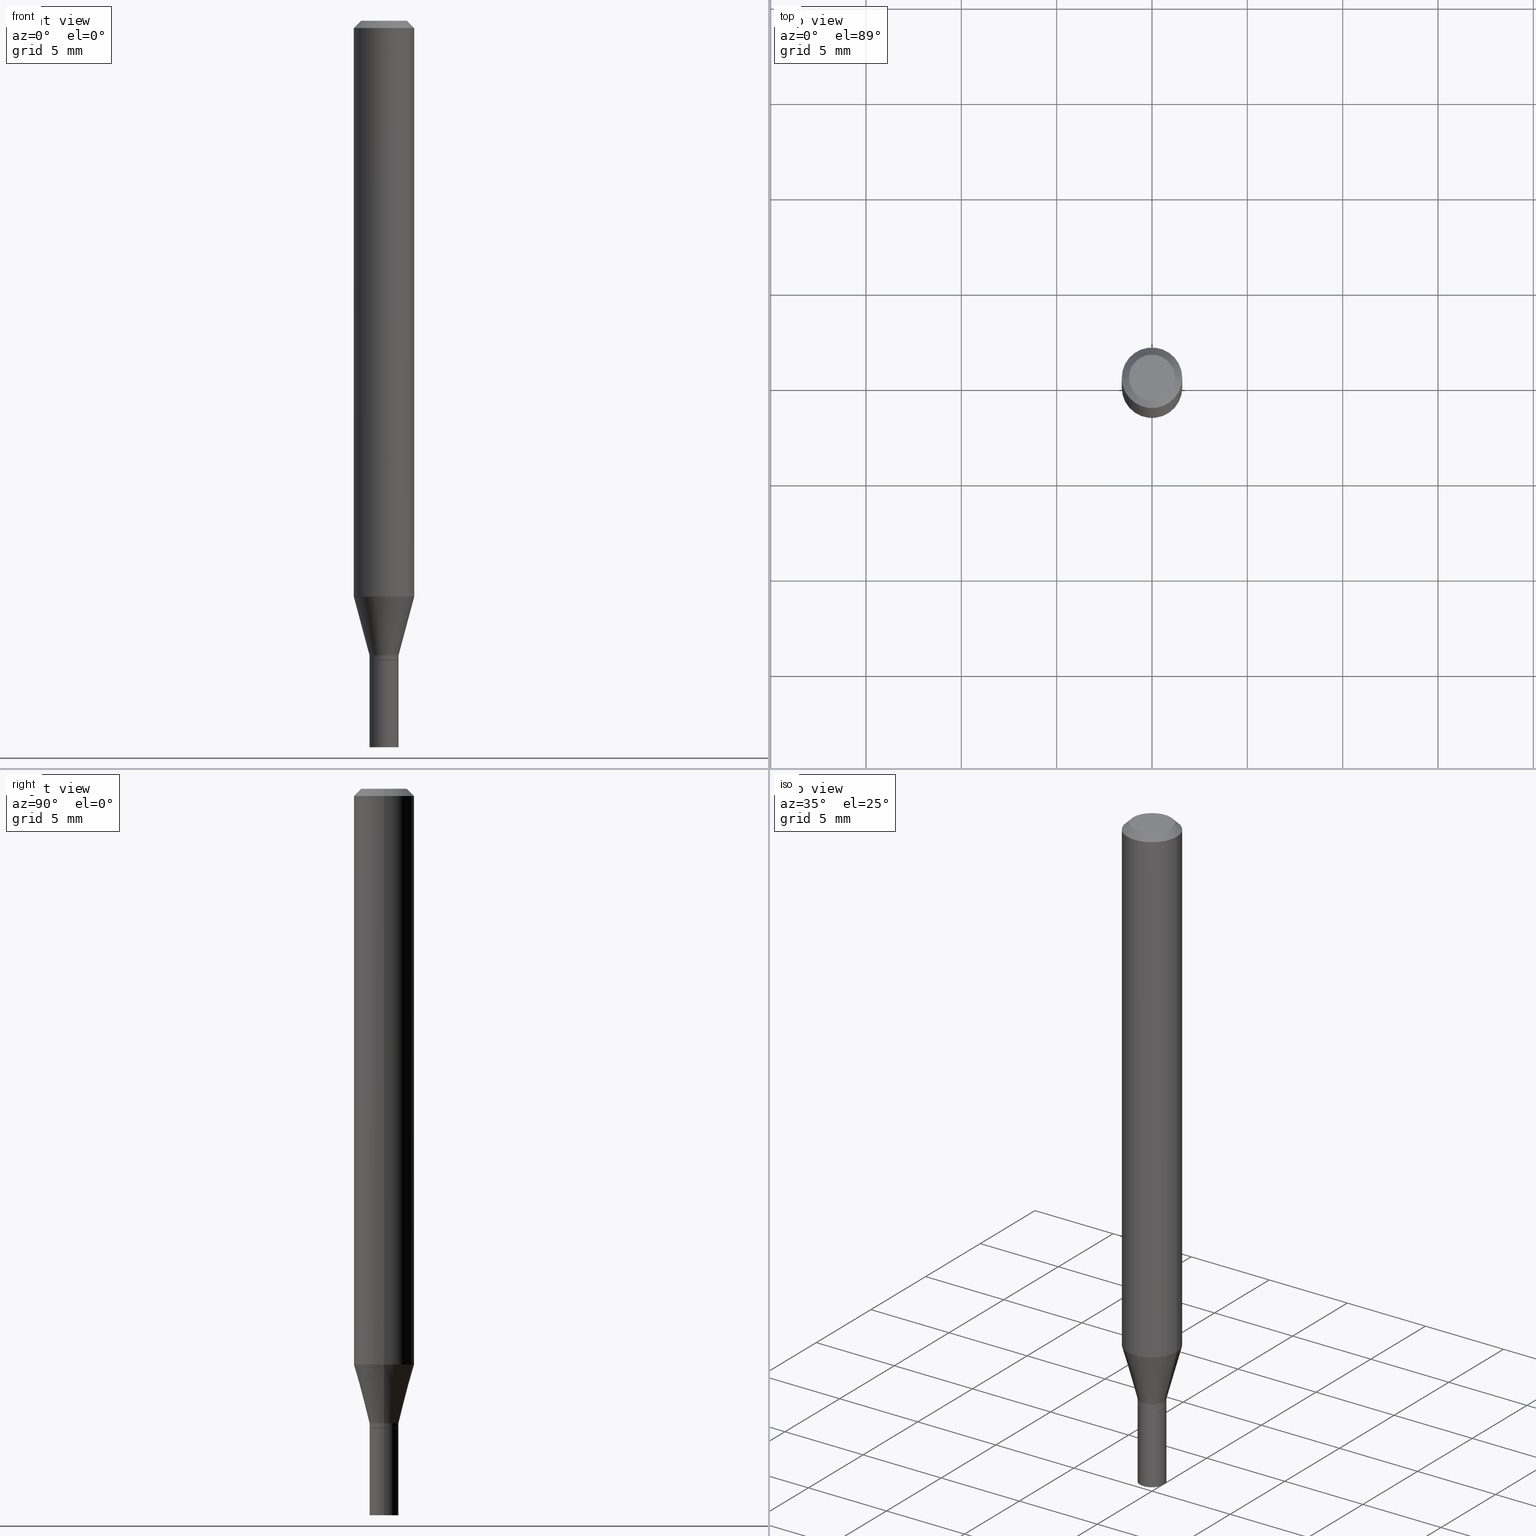
[diagram: canonical four-view strip — front | top / right | iso, engineering-drawing reading convention]
A machine part, canonical four-view strip (front | top / right | iso — engineering-drawing reading convention). The complete STEP part file that produces these views, byte-faithful:
ISO-10303-21;
HEADER;
FILE_DESCRIPTION (( 'STEP AP203' ),
    '1' );
FILE_NAME ('00569.STEP',
    '2024-03-19T21:45:49',
    ( '' ),
    ( '' ),
    'SwSTEP 2.0',
    'SolidWorks 2023',
    '' );
FILE_SCHEMA (( 'CONFIG_CONTROL_DESIGN' ));
ENDSEC;

DATA;
#1 = CC_DESIGN_PERSON_AND_ORGANIZATION_ASSIGNMENT ( #31, #406, ( #144 ) ) ;
#2 = FACE_OUTER_BOUND ( 'NONE', #376, .T. ) ;
#3 = AXIS2_PLACEMENT_3D ( 'NONE', #252, #386, #213 ) ;
#4 = APPROVAL_PERSON_ORGANIZATION ( #380, #449, #19 ) ;
#5 = ORIENTED_EDGE ( 'NONE', *, *, #178, .T. ) ;
#6 = EDGE_LOOP ( 'NONE', ( #69, #313, #239, #338 ) ) ;
#7 = CARTESIAN_POINT ( 'NONE',  ( 0.000000000000000000, 0.000000000000000000, 0.000000000000000000 ) ) ;
#8 = EDGE_LOOP ( 'NONE', ( #254, #114, #59, #334 ) ) ;
#9 = EDGE_CURVE ( 'NONE', #90, #344, #403, .T. ) ;
#10 = PLANE ( 'NONE',  #215 ) ;
#11 = VECTOR ( 'NONE', #16, 39.37007874015748854 ) ;
#12 = EDGE_LOOP ( 'NONE', ( #45, #398, #26, #390 ) ) ;
#13 = AXIS2_PLACEMENT_3D ( 'NONE', #442, #295, #117 ) ;
#14 = CARTESIAN_POINT ( 'NONE',  ( 0.06250000000000000000, -4.586788184357076846E-15, -1.188708348754012878 ) ) ;
#15 = DIRECTION ( 'NONE',  ( 1.000000000000000000, -6.982962677686250933E-15, 0.000000000000000000 ) ) ;
#16 = DIRECTION ( 'NONE',  ( -0.7071067811865416886, 2.468850131082196713E-15, -0.7071067811865531239 ) ) ;
#17 = ORIENTED_EDGE ( 'NONE', *, *, #70, .T. ) ;
#18 = DIRECTION ( 'NONE',  ( 1.000000000000000000, -6.982962677686268288E-15, 0.000000000000000000 ) ) ;
#19 = APPROVAL_ROLE ( '' ) ;
#20 = ORIENTED_EDGE ( 'NONE', *, *, #104, .F. ) ;
#21 = PRODUCT_DEFINITION_SHAPE ( 'NONE', 'NONE',  #251 ) ;
#22 = ADVANCED_FACE ( 'NONE', ( #303 ), #382, .T. ) ;
#23 = ORIENTED_EDGE ( 'NONE', *, *, #9, .T. ) ;
#24 = DESIGN_CONTEXT ( 'detailed design', #423, 'design' ) ;
#25 = DATE_TIME_ROLE ( 'classification_date' ) ;
#26 = ORIENTED_EDGE ( 'NONE', *, *, #255, .T. ) ;
#27 = DIRECTION ( 'NONE',  ( -2.445468806185136597E-29, 3.491481338843145583E-15, 1.000000000000000000 ) ) ;
#28 = AXIS2_PLACEMENT_3D ( 'NONE', #414, #27, #440 ) ;
#29 = AXIS2_PLACEMENT_3D ( 'NONE', #149, #391, #39 ) ;
#30 = VERTEX_POINT ( 'NONE', #237 ) ;
#31 = PERSON_AND_ORGANIZATION ( #47, #38 ) ;
#32 = ORIENTED_EDGE ( 'NONE', *, *, #147, .T. ) ;
#33 = DIRECTION ( 'NONE',  ( 2.438088387897960049E-29, -3.491481338843145188E-15, -1.000000000000000000 ) ) ;
#34 = ADVANCED_BREP_SHAPE_REPRESENTATION ( '00569', ( #330, #331, #130 ), #372 ) ;
#35 = APPROVAL_STATUS ( 'not_yet_approved' ) ;
#36 = DIRECTION ( 'NONE',  ( 1.000000000000000000, -6.982962677686266711E-15, 4.876176775795935793E-29 ) ) ;
#37 = CARTESIAN_POINT ( 'NONE',  ( -0.02999999999999999889, 2.131628207280300479E-16, -1.475680527076471707E-30 ) ) ;
#38 = ORGANIZATION ( 'UNSPECIFIED', 'UNSPECIFIED', '' ) ;
#39 = DIRECTION ( 'NONE',  ( 1.000000000000000000, -6.982962677686262766E-15, 0.000000000000000000 ) ) ;
#40 = FACE_OUTER_BOUND ( 'NONE', #6, .T. ) ;
#41 = DIRECTION ( 'NONE',  ( 2.445468806185136597E-29, -3.491481338843145583E-15, -1.000000000000000000 ) ) ;
#42 = PLANE ( 'NONE',  #44 ) ;
#43 = EDGE_CURVE ( 'NONE', #134, #288, #375, .T. ) ;
#44 = AXIS2_PLACEMENT_3D ( 'NONE', #348, #33, #350 ) ;
#45 = ORIENTED_EDGE ( 'NONE', *, *, #279, .F. ) ;
#46 = CIRCLE ( 'NONE', #168, 0.04749999999999999362 ) ;
#47 = PERSON ( 'UNSPECIFIED', 'UNSPECIFIED', 'UNSPECIFIED', ('UNSPECIFIED'), ('UNSPECIFIED'), ('UNSPECIFIED') ) ;
#48 = LINE ( 'NONE', #358, #400 ) ;
#49 = EDGE_CURVE ( 'NONE', #126, #128, #362, .T. ) ;
#50 = PERSON_AND_ORGANIZATION ( #47, #38 ) ;
#51 = FACE_OUTER_BOUND ( 'NONE', #141, .T. ) ;
#52 = AXIS2_PLACEMENT_3D ( 'NONE', #260, #369, #92 ) ;
#53 = APPLICATION_PROTOCOL_DEFINITION ( 'international standard', 'config_control_design', 1994, #423 ) ;
#54 = CARTESIAN_POINT ( 'NONE',  ( 0.02999999999999999889, -4.818244247603540754E-15, -1.320000000000000062 ) ) ;
#55 = VERTEX_POINT ( 'NONE', #205 ) ;
#56 = CARTESIAN_POINT ( 'NONE',  ( 0.06250000000000000000, -4.888073874380388472E-16, -0.01499999999999999944 ) ) ;
#57 = DIRECTION ( 'NONE',  ( -2.438088387897960049E-29, 3.491481338843145188E-15, 1.000000000000000000 ) ) ;
#58 = CONICAL_SURFACE ( 'NONE', #71, 0.03000000000000020012, 0.2617993877991501295 ) ;
#59 = ORIENTED_EDGE ( 'NONE', *, *, #312, .T. ) ;
#60 = VECTOR ( 'NONE', #188, 39.37007874015748143 ) ;
#61 = CARTESIAN_POINT ( 'NONE',  ( 3.203564136102529457E-29, -4.573840553884521577E-15, -1.310000000000000275 ) ) ;
#62 = VERTEX_POINT ( 'NONE', #14 ) ;
#63 = DIRECTION ( 'NONE',  ( -2.445468806185136597E-29, 3.491481338843145583E-15, 1.000000000000000000 ) ) ;
#64 = CARTESIAN_POINT ( 'NONE',  ( 3.228018824164380442E-29, -4.608755367272952437E-15, -1.320000000000000062 ) ) ;
#65 = DATE_AND_TIME ( #420, #343 ) ;
#66 = EDGE_CURVE ( 'NONE', #344, #288, #98, .T. ) ;
#67 = CARTESIAN_POINT ( 'NONE',  ( 0.06250000000000000000, -4.811533449433679005E-16, -0.01499999999999999944 ) ) ;
#68 = ORIENTED_EDGE ( 'NONE', *, *, #74, .F. ) ;
#69 = ORIENTED_EDGE ( 'NONE', *, *, #236, .T. ) ;
#70 = EDGE_CURVE ( 'NONE', #441, #30, #371, .T. ) ;
#71 = AXIS2_PLACEMENT_3D ( 'NONE', #61, #164, #234 ) ;
#72 = AXIS2_PLACEMENT_3D ( 'NONE', #80, #41, #145 ) ;
#73 = EDGE_CURVE ( 'NONE', #180, #62, #167, .T. ) ;
#74 = EDGE_CURVE ( 'NONE', #90, #134, #219, .T. ) ;
#75 = CARTESIAN_POINT ( 'NONE',  ( -0.02999999999999992256, -4.393846805875501477E-15, -1.319500000000000117 ) ) ;
#76 = DIRECTION ( 'NONE',  ( -2.445468806185136597E-29, 3.491481338843145583E-15, 1.000000000000000000 ) ) ;
#77 = CARTESIAN_POINT ( 'NONE',  ( 0.000000000000000000, 0.000000000000000000, 0.000000000000000000 ) ) ;
#78 = ADVANCED_FACE ( 'NONE', ( #228 ), #58, .T. ) ;
#79 = FACE_OUTER_BOUND ( 'NONE', #124, .T. ) ;
#80 = CARTESIAN_POINT ( 'NONE',  ( 3.668203209277705088E-31, -5.237222008264718399E-17, -0.01499999999999999944 ) ) ;
#81 = DIRECTION ( 'NONE',  ( -2.445468806185136597E-29, 3.491481338843145583E-15, 1.000000000000000000 ) ) ;
#82 = VERTEX_POINT ( 'NONE', #194 ) ;
#83 = AXIS2_PLACEMENT_3D ( 'NONE', #169, #123, #100 ) ;
#84 = FACE_OUTER_BOUND ( 'NONE', #193, .T. ) ;
#85 = DATE_TIME_ROLE ( 'creation_date' ) ;
#86 = DIRECTION ( 'NONE',  ( 1.000000000000000000, -6.982962677686268288E-15, 0.000000000000000000 ) ) ;
#87 = EDGE_CURVE ( 'NONE', #165, #191, #431, .T. ) ;
#88 = DIRECTION ( 'NONE',  ( -2.445468806185136597E-29, 3.491481338843145583E-15, 1.000000000000000000 ) ) ;
#89 = AXIS2_PLACEMENT_3D ( 'NONE', #258, #63, #86 ) ;
#90 = VERTEX_POINT ( 'NONE', #417 ) ;
#91 =( CONVERSION_BASED_UNIT ( 'INCH', #216 ) LENGTH_UNIT ( ) NAMED_UNIT ( #326 ) );
#92 = DIRECTION ( 'NONE',  ( 1.000000000000000000, -6.982962677686268288E-15, 0.000000000000000000 ) ) ;
#93 = CARTESIAN_POINT ( 'NONE',  ( -0.06250000000000000000, 3.840629472727444916E-16, -0.01499999999999999944 ) ) ;
#94 = CARTESIAN_POINT ( 'NONE',  ( -0.03000000000000006481, 2.131628207280305163E-16, -1.475680527076474859E-30 ) ) ;
#95 = EDGE_CURVE ( 'NONE', #82, #126, #304, .T. ) ;
#96 = ORIENTED_EDGE ( 'NONE', *, *, #172, .T. ) ;
#97 = DIRECTION ( 'NONE',  ( -2.445468806185136597E-29, 3.491481338843145583E-15, 1.000000000000000000 ) ) ;
#98 = CIRCLE ( 'NONE', #278, 0.06250000000000000000 ) ;
#99 = AXIS2_PLACEMENT_3D ( 'NONE', #153, #57, #226 ) ;
#100 = DIRECTION ( 'NONE',  ( 1.000000000000000000, -6.982962677686267499E-15, 4.852736867747366768E-29 ) ) ;
#101 = ADVANCED_FACE ( 'NONE', ( #103 ), #377, .T. ) ;
#102 = SECURITY_CLASSIFICATION_LEVEL ( 'unclassified' ) ;
#103 = FACE_OUTER_BOUND ( 'NONE', #368, .T. ) ;
#104 = EDGE_CURVE ( 'NONE', #288, #344, #119, .T. ) ;
#105 = VECTOR ( 'NONE', #174, 39.37007874015748143 ) ;
#106 = LOCAL_TIME ( 17, 45, 49.00000000000000000, #393 ) ;
#107 = PERSON_AND_ORGANIZATION ( #47, #38 ) ;
#108 = ORIENTED_EDGE ( 'NONE', *, *, #49, .F. ) ;
#109 = DIRECTION ( 'NONE',  ( -2.445468806185136877E-29, 3.491481338843145188E-15, 1.000000000000000000 ) ) ;
#110 = ADVANCED_FACE ( 'NONE', ( #143 ), #246, .T. ) ;
#111 = DIRECTION ( 'NONE',  ( 2.445468806185136597E-29, -3.491481338843145583E-15, -1.000000000000000000 ) ) ;
#112 = ORIENTED_EDGE ( 'NONE', *, *, #95, .T. ) ;
#113 = AXIS2_PLACEMENT_3D ( 'NONE', #166, #81, #383 ) ;
#114 = ORIENTED_EDGE ( 'NONE', *, *, #201, .T. ) ;
#115 = AXIS2_PLACEMENT_3D ( 'NONE', #181, #289, #323 ) ;
#116 = CALENDAR_DATE ( 2024, 19, 3 ) ;
#117 = DIRECTION ( 'NONE',  ( 1.000000000000000000, -6.982962677686250933E-15, 0.000000000000000000 ) ) ;
#118 = CARTESIAN_POINT ( 'NONE',  ( 0.000000000000000000, 0.000000000000000000, 0.000000000000000000 ) ) ;
#119 = CIRCLE ( 'NONE', #113, 0.06250000000000000000 ) ;
#120 = CC_DESIGN_APPROVAL ( #248, ( #352 ) ) ;
#121 = LOCAL_TIME ( 17, 45, 49.00000000000000000, #378 ) ;
#122 = ORIENTED_EDGE ( 'NONE', *, *, #396, .F. ) ;
#123 = DIRECTION ( 'NONE',  ( -2.445468806185136597E-29, 3.491481338843145583E-15, 1.000000000000000000 ) ) ;
#124 = EDGE_LOOP ( 'NONE', ( #268, #229 ) ) ;
#125 = CYLINDRICAL_SURFACE ( 'NONE', #286, 0.03000000000000006481 ) ;
#126 = VERTEX_POINT ( 'NONE', #75 ) ;
#127 = ORIENTED_EDGE ( 'NONE', *, *, #355, .T. ) ;
#128 = VERTEX_POINT ( 'NONE', #388 ) ;
#129 = ORIENTED_EDGE ( 'NONE', *, *, #233, .T. ) ;
#130 = AXIS2_PLACEMENT_3D ( 'NONE', #327, #186, #267 ) ;
#131 = CARTESIAN_POINT ( 'NONE',  ( 3.203564136102529457E-29, -4.573840553884521577E-15, -1.310000000000000275 ) ) ;
#132 = DIRECTION ( 'NONE',  ( -2.445468806185136597E-29, 3.491481338843145583E-15, 1.000000000000000000 ) ) ;
#133 = CC_DESIGN_PERSON_AND_ORGANIZATION_ASSIGNMENT ( #107, #346, ( #352 ) ) ;
#134 = VERTEX_POINT ( 'NONE', #426 ) ;
#135 = DIRECTION ( 'NONE',  ( -2.445468806185136597E-29, 3.491481338843145583E-15, 1.000000000000000000 ) ) ;
#136 = APPROVAL_ROLE ( '' ) ;
#137 = ORIENTED_EDGE ( 'NONE', *, *, #185, .F. ) ;
#138 = CARTESIAN_POINT ( 'NONE',  ( 0.02999999999999999889, -5.446710888595306494E-15, -1.500000000000000222 ) ) ;
#139 = CONICAL_SURFACE ( 'NONE', #187, 0.03000000000000020012, 0.2617993877991501295 ) ;
#140 = CARTESIAN_POINT ( 'NONE',  ( 0.03000000000000006481, -2.094888803305884401E-16, 1.462853032738783856E-30 ) ) ;
#141 = EDGE_LOOP ( 'NONE', ( #311, #287 ) ) ;
#142 = LINE ( 'NONE', #140, #437 ) ;
#143 = FACE_OUTER_BOUND ( 'NONE', #320, .T. ) ;
#144 = SECURITY_CLASSIFICATION ( '', '', #102 ) ;
#145 = DIRECTION ( 'NONE',  ( -1.000000000000000000, 6.982962677686266711E-15, 0.000000000000000000 ) ) ;
#146 = DIRECTION ( 'NONE',  ( -1.000000000000000000, 6.982962677686266711E-15, 0.000000000000000000 ) ) ;
#147 = EDGE_CURVE ( 'NONE', #128, #441, #142, .T. ) ;
#148 = DIRECTION ( 'NONE',  ( -2.445468806185136597E-29, 3.491481338843145583E-15, 1.000000000000000000 ) ) ;
#149 = CARTESIAN_POINT ( 'NONE',  ( 2.906949186529780913E-29, -4.150353017001685176E-15, -1.188708348754012878 ) ) ;
#150 = APPLICATION_PROTOCOL_DEFINITION ( 'international standard', 'config_control_design', 1994, #394 ) ;
#151 = ORIENTED_EDGE ( 'NONE', *, *, #236, .F. ) ;
#152 = CIRCLE ( 'NONE', #13, 0.02949999999999999845 ) ;
#153 = CARTESIAN_POINT ( 'NONE',  ( 3.228018824164380442E-29, -4.608755367272952437E-15, -1.320000000000000062 ) ) ;
#154 = ADVANCED_FACE ( 'NONE', ( #79 ), #42, .F. ) ;
#155 = CC_DESIGN_PERSON_AND_ORGANIZATION_ASSIGNMENT ( #310, #452, ( #352 ) ) ;
#156 = CARTESIAN_POINT ( 'NONE',  ( -0.02999999999999999889, -4.709825867040805456E-15, -1.320000000000000062 ) ) ;
#157 = DIRECTION ( 'NONE',  ( 1.000000000000000000, -6.982962677686265922E-15, 4.876176775795935793E-29 ) ) ;
#158 = ORIENTED_EDGE ( 'NONE', *, *, #178, .F. ) ;
#159 = CIRCLE ( 'NONE', #438, 0.03000000000000020012 ) ;
#160 = EDGE_LOOP ( 'NONE', ( #341, #329, #32, #184 ) ) ;
#161 = CARTESIAN_POINT ( 'NONE',  ( 3.226796089761288762E-29, -4.607009626603530934E-15, -1.319500000000000117 ) ) ;
#162 =( NAMED_UNIT ( * ) PLANE_ANGLE_UNIT ( ) SI_UNIT ( $, .RADIAN. ) );
#163 = PLANE ( 'NONE',  #99 ) ;
#164 = DIRECTION ( 'NONE',  ( -2.445468806185136597E-29, 3.491481338843145583E-15, 1.000000000000000000 ) ) ;
#165 = VERTEX_POINT ( 'NONE', #138 ) ;
#166 = CARTESIAN_POINT ( 'NONE',  ( 3.668203209277705088E-31, -5.237222008264718399E-17, -0.01499999999999999944 ) ) ;
#167 = CIRCLE ( 'NONE', #28, 0.06250000000000000000 ) ;
#168 = AXIS2_PLACEMENT_3D ( 'NONE', #307, #132, #202 ) ;
#169 = CARTESIAN_POINT ( 'NONE',  ( -6.039856226162565090E-45, 8.623313963198306787E-31, 2.469815280770059421E-16 ) ) ;
#170 = DIRECTION ( 'NONE',  ( -2.445468806185136597E-29, 3.491481338843145583E-15, 1.000000000000000000 ) ) ;
#171 = DIRECTION ( 'NONE',  ( 1.000000000000000000, -6.982962677686253300E-15, 0.000000000000000000 ) ) ;
#172 = EDGE_CURVE ( 'NONE', #55, #128, #285, .T. ) ;
#173 = AXIS2_PLACEMENT_3D ( 'NONE', #451, #339, #18 ) ;
#174 = DIRECTION ( 'NONE',  ( -2.445468806185136877E-29, 3.491481338843145188E-15, 1.000000000000000000 ) ) ;
#175 = CIRCLE ( 'NONE', #89, 0.02999999999999999889 ) ;
#176 = DIRECTION ( 'NONE',  ( -2.445468806185136597E-29, 3.491481338843145583E-15, 1.000000000000000000 ) ) ;
#177 = LINE ( 'NONE', #37, #105 ) ;
#178 = EDGE_CURVE ( 'NONE', #191, #354, #177, .T. ) ;
#179 = AXIS2_PLACEMENT_3D ( 'NONE', #464, #111, #146 ) ;
#180 = VERTEX_POINT ( 'NONE', #282 ) ;
#181 = CARTESIAN_POINT ( 'NONE',  ( 3.228018824164380442E-29, -4.608755367272952437E-15, -1.320000000000000062 ) ) ;
#182 = CC_DESIGN_DATE_AND_TIME_ASSIGNMENT ( #257, #85, ( #251 ) ) ;
#183 = ADVANCED_FACE ( 'NONE', ( #40 ), #319, .T. ) ;
#184 = ORIENTED_EDGE ( 'NONE', *, *, #201, .F. ) ;
#185 = EDGE_CURVE ( 'NONE', #165, #413, #353, .T. ) ;
#186 = DIRECTION ( 'NONE',  ( 0.000000000000000000, 0.000000000000000000, 1.000000000000000000 ) ) ;
#187 = AXIS2_PLACEMENT_3D ( 'NONE', #397, #88, #221 ) ;
#188 = DIRECTION ( 'NONE',  ( -2.445468806185136877E-29, 3.491481338843145188E-15, 1.000000000000000000 ) ) ;
#189 = CALENDAR_DATE ( 2024, 19, 3 ) ;
#190 = FACE_OUTER_BOUND ( 'NONE', #12, .T. ) ;
#191 = VERTEX_POINT ( 'NONE', #249 ) ;
#192 = CARTESIAN_POINT ( 'NONE',  ( -0.06250000000000000000, -1.657273408692103709E-15, -0.01499999999999999944 ) ) ;
#193 = EDGE_LOOP ( 'NONE', ( #247, #276, #261, #317 ) ) ;
#194 = CARTESIAN_POINT ( 'NONE',  ( -0.02949999999999999845, -4.396496033049612679E-15, -1.320000000000000062 ) ) ;
#195 = CARTESIAN_POINT ( 'NONE',  ( 0.03000000000000020012, -4.783329434215110683E-15, -1.310000000000000275 ) ) ;
#196 = EDGE_LOOP ( 'NONE', ( #273, #419 ) ) ;
#197 = ORIENTED_EDGE ( 'NONE', *, *, #87, .F. ) ;
#198 = CC_DESIGN_PERSON_AND_ORGANIZATION_ASSIGNMENT ( #50, #291, ( #251 ) ) ;
#199 = DIRECTION ( 'NONE',  ( -2.445468806185136597E-29, 3.491481338843145583E-15, 1.000000000000000000 ) ) ;
#200 = DATE_AND_TIME ( #455, #379 ) ;
#201 = EDGE_CURVE ( 'NONE', #30, #441, #159, .T. ) ;
#202 = DIRECTION ( 'NONE',  ( 1.000000000000000000, -6.982962677686267499E-15, 4.852736867747366768E-29 ) ) ;
#203 = AXIS2_PLACEMENT_3D ( 'NONE', #465, #148, #429 ) ;
#204 = ORIENTED_EDGE ( 'NONE', *, *, #185, .T. ) ;
#205 = CARTESIAN_POINT ( 'NONE',  ( 0.02949999999999999845, -4.814752766264696958E-15, -1.320000000000000062 ) ) ;
#206 = ADVANCED_FACE ( 'NONE', ( #84 ), #280, .T. ) ;
#207 = SHAPE_DEFINITION_REPRESENTATION ( #21, #34 ) ;
#208 = EDGE_CURVE ( 'NONE', #191, #165, #232, .T. ) ;
#209 = CARTESIAN_POINT ( 'NONE',  ( 3.203564136102529457E-29, -4.573840553884521577E-15, -1.310000000000000275 ) ) ;
#210 = FACE_OUTER_BOUND ( 'NONE', #444, .T. ) ;
#211 = CARTESIAN_POINT ( 'NONE',  ( 0.02949999999999999845, -4.814752766264696958E-15, -1.320000000000000062 ) ) ;
#212 = CC_DESIGN_DATE_AND_TIME_ASSIGNMENT ( #200, #25, ( #144 ) ) ;
#213 = DIRECTION ( 'NONE',  ( 1.000000000000000000, -6.982962677686268288E-15, 0.000000000000000000 ) ) ;
#214 = VECTOR ( 'NONE', #374, 39.37007874015748143 ) ;
#215 = AXIS2_PLACEMENT_3D ( 'NONE', #297, #269, #157 ) ;
#216 = LENGTH_MEASURE_WITH_UNIT ( LENGTH_MEASURE( 0.02539999999999999897 ), #433 );
#217 = APPROVAL_STATUS ( 'not_yet_approved' ) ;
#218 = LINE ( 'NONE', #94, #60 ) ;
#219 = CIRCLE ( 'NONE', #83, 0.04749999999999999362 ) ;
#220 = CONICAL_SURFACE ( 'NONE', #72, 0.06250000000000000000, 0.7853981633974401744 ) ;
#221 = DIRECTION ( 'NONE',  ( 1.000000000000000000, -6.982962677686253300E-15, 0.000000000000000000 ) ) ;
#222 = LINE ( 'NONE', #404, #463 ) ;
#223 = EDGE_CURVE ( 'NONE', #30, #180, #48, .T. ) ;
#224 = ORIENTED_EDGE ( 'NONE', *, *, #208, .T. ) ;
#225 = PRODUCT ( '00569', '00569', '', ( #401 ) ) ;
#226 = DIRECTION ( 'NONE',  ( 1.000000000000000000, -6.982962677686265922E-15, 4.876176775795935793E-29 ) ) ;
#227 = ORIENTED_EDGE ( 'NONE', *, *, #462, .T. ) ;
#228 = FACE_OUTER_BOUND ( 'NONE', #453, .T. ) ;
#229 = ORIENTED_EDGE ( 'NONE', *, *, #244, .T. ) ;
#230 = AXIS2_PLACEMENT_3D ( 'NONE', #161, #170, #238 ) ;
#231 = DIRECTION ( 'NONE',  ( 0.2588190451025214611, 1.565188264969621573E-15, 0.9659258262890682012 ) ) ;
#232 = CIRCLE ( 'NONE', #3, 0.02999999999999999889 ) ;
#233 = EDGE_CURVE ( 'NONE', #82, #55, #262, .T. ) ;
#234 = DIRECTION ( 'NONE',  ( 1.000000000000000000, -6.982962677686253300E-15, 0.000000000000000000 ) ) ;
#235 = APPROVAL_DATE_TIME ( #243, #449 ) ;
#236 = EDGE_CURVE ( 'NONE', #128, #126, #290, .T. ) ;
#237 = CARTESIAN_POINT ( 'NONE',  ( -0.03000000000000020012, -4.033470770154056946E-15, -1.310000000000000275 ) ) ;
#238 = DIRECTION ( 'NONE',  ( 1.000000000000000000, -6.982962677686254089E-15, 0.000000000000000000 ) ) ;
#239 = ORIENTED_EDGE ( 'NONE', *, *, #70, .F. ) ;
#240 = CARTESIAN_POINT ( 'NONE',  ( 0.000000000000000000, 0.000000000000000000, 0.000000000000000000 ) ) ;
#241 = AXIS2_PLACEMENT_3D ( 'NONE', #385, #322, #315 ) ;
#242 = VECTOR ( 'NONE', #231, 39.37007874015747433 ) ;
#243 = DATE_AND_TIME ( #411, #121 ) ;
#244 = EDGE_CURVE ( 'NONE', #354, #413, #384, .T. ) ;
#245 = ORIENTED_EDGE ( 'NONE', *, *, #172, .F. ) ;
#246 = CYLINDRICAL_SURFACE ( 'NONE', #241, 0.06250000000000000000 ) ;
#247 = ORIENTED_EDGE ( 'NONE', *, *, #424, .F. ) ;
#248 = APPROVAL ( #340, 'UNSPECIFIED' ) ;
#249 = CARTESIAN_POINT ( 'NONE',  ( -0.02999999999999999889, -4.709825867040805456E-15, -1.500000000000000222 ) ) ;
#250 = AXIS2_PLACEMENT_3D ( 'NONE', #292, #407, #15 ) ;
#251 = PRODUCT_DEFINITION ( 'UNKNOWN', '', #352, #24 ) ;
#252 = CARTESIAN_POINT ( 'NONE',  ( 3.668203209277704895E-29, -5.237222008264718177E-15, -1.500000000000000222 ) ) ;
#253 = CARTESIAN_POINT ( 'NONE',  ( 0.000000000000000000, 0.000000000000000000, 0.000000000000000000 ) ) ;
#254 = ORIENTED_EDGE ( 'NONE', *, *, #223, .F. ) ;
#255 = EDGE_CURVE ( 'NONE', #62, #288, #222, .T. ) ;
#256 = CLOSED_SHELL ( 'NONE', ( #183, #101, #206, #110, #78, #405, #415, #430, #347, #336, #345, #392 ) ) ;
#257 = DATE_AND_TIME ( #116, #106 ) ;
#258 = CARTESIAN_POINT ( 'NONE',  ( 3.228018824164380442E-29, -4.608755367272952437E-15, -1.320000000000000062 ) ) ;
#259 = APPROVAL_ROLE ( '' ) ;
#260 = CARTESIAN_POINT ( 'NONE',  ( 3.228018824164380442E-29, -4.608755367272952437E-15, -1.320000000000000062 ) ) ;
#261 = ORIENTED_EDGE ( 'NONE', *, *, #104, .T. ) ;
#262 = CIRCLE ( 'NONE', #115, 0.02949999999999999845 ) ;
#263 = EDGE_CURVE ( 'NONE', #126, #30, #218, .T. ) ;
#264 = DIRECTION ( 'NONE',  ( -2.445468806185136877E-29, 3.491481338843145188E-15, 1.000000000000000000 ) ) ;
#265 = APPROVAL_DATE_TIME ( #332, #454 ) ;
#266 = ORIENTED_EDGE ( 'NONE', *, *, #244, .F. ) ;
#267 = DIRECTION ( 'NONE',  ( 1.000000000000000000, 0.000000000000000000, 0.000000000000000000 ) ) ;
#268 = ORIENTED_EDGE ( 'NONE', *, *, #396, .T. ) ;
#269 = DIRECTION ( 'NONE',  ( -2.438088387897960049E-29, 3.491481338843145188E-15, 1.000000000000000000 ) ) ;
#270 = DIRECTION ( 'NONE',  ( 1.000000000000000000, -6.982962677686266711E-15, 0.000000000000000000 ) ) ;
#271 = AXIS2_PLACEMENT_3D ( 'NONE', #131, #135, #309 ) ;
#272 = APPROVAL_PERSON_ORGANIZATION ( #305, #248, #136 ) ;
#273 = ORIENTED_EDGE ( 'NONE', *, *, #355, .F. ) ;
#274 = ORIENTED_EDGE ( 'NONE', *, *, #66, .T. ) ;
#275 = COORDINATED_UNIVERSAL_TIME_OFFSET ( 5, 0, .BEHIND. ) ;
#276 = ORIENTED_EDGE ( 'NONE', *, *, #43, .T. ) ;
#277 = COORDINATED_UNIVERSAL_TIME_OFFSET ( 5, 0, .BEHIND. ) ;
#278 = AXIS2_PLACEMENT_3D ( 'NONE', #301, #446, #270 ) ;
#279 = EDGE_CURVE ( 'NONE', #180, #344, #373, .T. ) ;
#280 = CONICAL_SURFACE ( 'NONE', #179, 0.06250000000000000000, 0.7853981633974401744 ) ;
#281 = ORIENTED_EDGE ( 'NONE', *, *, #43, .F. ) ;
#282 = CARTESIAN_POINT ( 'NONE',  ( -0.06250000000000000000, -3.706263807151623349E-15, -1.188708348754012878 ) ) ;
#283 = CARTESIAN_POINT ( 'NONE',  ( 0.02999999999999999889, -2.094888803305880210E-16, 1.462853032738780878E-30 ) ) ;
#284 = ORIENTED_EDGE ( 'NONE', *, *, #87, .T. ) ;
#285 = LINE ( 'NONE', #211, #299 ) ;
#286 = AXIS2_PLACEMENT_3D ( 'NONE', #118, #97, #436 ) ;
#287 = ORIENTED_EDGE ( 'NONE', *, *, #424, .T. ) ;
#288 = VERTEX_POINT ( 'NONE', #56 ) ;
#289 = DIRECTION ( 'NONE',  ( -2.445468806185136597E-29, 3.491481338843145583E-15, 1.000000000000000000 ) ) ;
#290 = CIRCLE ( 'NONE', #203, 0.02999999999999992256 ) ;
#291 = PERSON_AND_ORGANIZATION_ROLE ( 'creator' ) ;
#292 = CARTESIAN_POINT ( 'NONE',  ( 3.228018824164380442E-29, -4.608755367272952437E-15, -1.320000000000000062 ) ) ;
#293 = CC_DESIGN_PERSON_AND_ORGANIZATION_ASSIGNMENT ( #366, #324, ( #225 ) ) ;
#294 =( NAMED_UNIT ( * ) SI_UNIT ( $, .STERADIAN. ) SOLID_ANGLE_UNIT ( ) );
#295 = DIRECTION ( 'NONE',  ( -2.445468806185136597E-29, 3.491481338843145583E-15, 1.000000000000000000 ) ) ;
#296 = EDGE_LOOP ( 'NONE', ( #284, #5, #122, #137 ) ) ;
#297 = CARTESIAN_POINT ( 'NONE',  ( 3.576687321579069994E-29, -5.368277968210015545E-15, -1.500000000000000222 ) ) ;
#298 = ORIENTED_EDGE ( 'NONE', *, *, #223, .T. ) ;
#299 = VECTOR ( 'NONE', #356, 39.37007874015748143 ) ;
#300 = LOCAL_TIME ( 17, 45, 49.00000000000000000, #360 ) ;
#301 = CARTESIAN_POINT ( 'NONE',  ( 3.668203209277705088E-31, -5.237222008264718399E-17, -0.01499999999999999944 ) ) ;
#302 = CARTESIAN_POINT ( 'NONE',  ( 3.316907271900976096E-16, 0.04749999999999999362, -4.235459955654642541E-17 ) ) ;
#303 = FACE_OUTER_BOUND ( 'NONE', #296, .T. ) ;
#304 = LINE ( 'NONE', #408, #214 ) ;
#305 = PERSON_AND_ORGANIZATION ( #47, #38 ) ;
#306 = ORIENTED_EDGE ( 'NONE', *, *, #462, .F. ) ;
#307 = CARTESIAN_POINT ( 'NONE',  ( -6.039856226162565090E-45, 8.623313963198306787E-31, 2.469815280770059421E-16 ) ) ;
#308 = APPROVAL_PERSON_ORGANIZATION ( #439, #454, #259 ) ;
#309 = DIRECTION ( 'NONE',  ( 1.000000000000000000, -6.982962677686253300E-15, 0.000000000000000000 ) ) ;
#310 = PERSON_AND_ORGANIZATION ( #47, #38 ) ;
#311 = ORIENTED_EDGE ( 'NONE', *, *, #74, .T. ) ;
#312 = EDGE_CURVE ( 'NONE', #441, #62, #333, .T. ) ;
#313 = ORIENTED_EDGE ( 'NONE', *, *, #263, .T. ) ;
#314 = AXIS2_PLACEMENT_3D ( 'NONE', #64, #199, #342 ) ;
#315 = DIRECTION ( 'NONE',  ( 1.000000000000000000, -6.982962677686266711E-15, 4.876176775795935793E-29 ) ) ;
#316 = ADVANCED_FACE ( 'NONE', ( #2 ), #10, .F. ) ;
#317 = ORIENTED_EDGE ( 'NONE', *, *, #9, .F. ) ;
#318 = DIRECTION ( 'NONE',  ( -2.445468806185136597E-29, 3.491481338843145583E-15, 1.000000000000000000 ) ) ;
#319 = CYLINDRICAL_SURFACE ( 'NONE', #432, 0.03000000000000006481 ) ;
#320 = EDGE_LOOP ( 'NONE', ( #227, #445, #20, #457 ) ) ;
#321 = AXIS2_PLACEMENT_3D ( 'NONE', #253, #351, #389 ) ;
#322 = DIRECTION ( 'NONE',  ( -2.445468806185136597E-29, 3.491481338843145583E-15, 1.000000000000000000 ) ) ;
#323 = DIRECTION ( 'NONE',  ( 1.000000000000000000, -6.982962677686250933E-15, 0.000000000000000000 ) ) ;
#324 = PERSON_AND_ORGANIZATION_ROLE ( 'design_owner' ) ;
#325 = FACE_OUTER_BOUND ( 'NONE', #196, .T. ) ;
#326 = DIMENSIONAL_EXPONENTS ( 1.000000000000000000, 0.000000000000000000, 0.000000000000000000, 0.000000000000000000, 0.000000000000000000, 0.000000000000000000, 0.000000000000000000 ) ;
#327 = CARTESIAN_POINT ( 'NONE',  ( 0.000000000000000000, 0.000000000000000000, 0.000000000000000000 ) ) ;
#328 = CYLINDRICAL_SURFACE ( 'NONE', #410, 0.06250000000000000000 ) ;
#329 = ORIENTED_EDGE ( 'NONE', *, *, #49, .T. ) ;
#330 = MANIFOLD_SOLID_BREP ( 'Body-Move/Copy2[1]', #399 ) ;
#331 = MANIFOLD_SOLID_BREP ( 'Body-Move/Copy2[2]', #256 ) ;
#332 = DATE_AND_TIME ( #189, #300 ) ;
#333 = LINE ( 'NONE', #195, #242 ) ;
#334 = ORIENTED_EDGE ( 'NONE', *, *, #73, .F. ) ;
#335 = CONICAL_SURFACE ( 'NONE', #250, 0.02949999999999999845, 0.7853981633974739252 ) ;
#336 = ADVANCED_FACE ( 'NONE', ( #325 ), #163, .F. ) ;
#337 = FACE_OUTER_BOUND ( 'NONE', #416, .T. ) ;
#338 = ORIENTED_EDGE ( 'NONE', *, *, #147, .F. ) ;
#339 = DIRECTION ( 'NONE',  ( -2.445468806185136597E-29, 3.491481338843145583E-15, 1.000000000000000000 ) ) ;
#340 = APPROVAL_STATUS ( 'not_yet_approved' ) ;
#341 = ORIENTED_EDGE ( 'NONE', *, *, #263, .F. ) ;
#342 = DIRECTION ( 'NONE',  ( 1.000000000000000000, -6.982962677686250933E-15, 0.000000000000000000 ) ) ;
#343 = LOCAL_TIME ( 17, 45, 49.00000000000000000, #277 ) ;
#344 = VERTEX_POINT ( 'NONE', #192 ) ;
#345 = ADVANCED_FACE ( 'NONE', ( #337 ), #335, .T. ) ;
#346 = PERSON_AND_ORGANIZATION_ROLE ( 'creator' ) ;
#347 = ADVANCED_FACE ( 'NONE', ( #51 ), #434, .F. ) ;
#348 = CARTESIAN_POINT ( 'NONE',  ( 2.094888803306202411E-16, 0.02999999999999539146, -1.320000000000000062 ) ) ;
#349 = APPROVAL_DATE_TIME ( #65, #248 ) ;
#350 = DIRECTION ( 'NONE',  ( -1.000000000000000000, 6.982962677686265922E-15, -4.876176775795935793E-29 ) ) ;
#351 = DIRECTION ( 'NONE',  ( -2.445468806185136597E-29, 3.491481338843145583E-15, 1.000000000000000000 ) ) ;
#352 = PRODUCT_DEFINITION_FORMATION_WITH_SPECIFIED_SOURCE ( 'ANY', '', #225, .NOT_KNOWN. ) ;
#353 = LINE ( 'NONE', #283, #421 ) ;
#354 = VERTEX_POINT ( 'NONE', #156 ) ;
#355 = EDGE_CURVE ( 'NONE', #55, #82, #152, .T. ) ;
#356 = DIRECTION ( 'NONE',  ( 0.7071067811865656694, -2.468850131082446387E-15, 0.7071067811865294761 ) ) ;
#357 = ORIENTED_EDGE ( 'NONE', *, *, #208, .F. ) ;
#358 = CARTESIAN_POINT ( 'NONE',  ( -0.03000000000000020012, -4.360677733156489754E-15, -1.310000000000000275 ) ) ;
#359 = AXIS2_PLACEMENT_3D ( 'NONE', #302, #365, #361 ) ;
#360 = COORDINATED_UNIVERSAL_TIME_OFFSET ( 5, 0, .BEHIND. ) ;
#361 = DIRECTION ( 'NONE',  ( -1.000000000000000000, 6.982962677686265922E-15, -4.876176775795935793E-29 ) ) ;
#362 = CIRCLE ( 'NONE', #230, 0.02999999999999992256 ) ;
#363 = PRODUCT_RELATED_PRODUCT_CATEGORY ( 'detail', '', ( #225 ) ) ;
#364 = CC_DESIGN_APPROVAL ( #454, ( #251 ) ) ;
#365 = DIRECTION ( 'NONE',  ( 2.438088387897960049E-29, -3.491481338843145188E-15, -1.000000000000000000 ) ) ;
#366 = PERSON_AND_ORGANIZATION ( #47, #38 ) ;
#367 = CARTESIAN_POINT ( 'NONE',  ( -0.06250000000000000000, 4.440892098500626162E-16, -3.074334431409316114E-30 ) ) ;
#368 = EDGE_LOOP ( 'NONE', ( #127, #112, #151, #245 ) ) ;
#369 = DIRECTION ( 'NONE',  ( -2.445468806185136597E-29, 3.491481338843145583E-15, 1.000000000000000000 ) ) ;
#370 = DIRECTION ( 'NONE',  ( 0.7071067811865416886, -7.319954787623233957E-15, -0.7071067811865531239 ) ) ;
#371 = CIRCLE ( 'NONE', #271, 0.03000000000000020012 ) ;
#372 =( GEOMETRIC_REPRESENTATION_CONTEXT ( 3 ) GLOBAL_UNCERTAINTY_ASSIGNED_CONTEXT ( ( #422 ) ) GLOBAL_UNIT_ASSIGNED_CONTEXT ( ( #91, #162, #294 ) ) REPRESENTATION_CONTEXT ( 'NONE', 'WORKASPACE' ) );
#373 = LINE ( 'NONE', #367, #458 ) ;
#374 = DIRECTION ( 'NONE',  ( -0.7071067811865656694, 7.493145998870420424E-15, 0.7071067811865294761 ) ) ;
#375 = LINE ( 'NONE', #67, #425 ) ;
#376 = EDGE_LOOP ( 'NONE', ( #197, #357 ) ) ;
#377 = CONICAL_SURFACE ( 'NONE', #314, 0.02949999999999999845, 0.7853981633974739252 ) ;
#378 = COORDINATED_UNIVERSAL_TIME_OFFSET ( 5, 0, .BEHIND. ) ;
#379 = LOCAL_TIME ( 17, 45, 49.00000000000000000, #275 ) ;
#380 = PERSON_AND_ORGANIZATION ( #47, #38 ) ;
#381 = ORIENTED_EDGE ( 'NONE', *, *, #95, .F. ) ;
#382 = CYLINDRICAL_SURFACE ( 'NONE', #409, 0.02999999999999999889 ) ;
#383 = DIRECTION ( 'NONE',  ( 1.000000000000000000, -6.982962677686266711E-15, 0.000000000000000000 ) ) ;
#384 = CIRCLE ( 'NONE', #52, 0.02999999999999999889 ) ;
#385 = CARTESIAN_POINT ( 'NONE',  ( 0.000000000000000000, 0.000000000000000000, 0.000000000000000000 ) ) ;
#386 = DIRECTION ( 'NONE',  ( -2.445468806185136597E-29, 3.491481338843145583E-15, 1.000000000000000000 ) ) ;
#387 = ORIENTED_EDGE ( 'NONE', *, *, #312, .F. ) ;
#388 = CARTESIAN_POINT ( 'NONE',  ( 0.02999999999999992256, -4.816498506934118462E-15, -1.319500000000000117 ) ) ;
#389 = DIRECTION ( 'NONE',  ( 1.000000000000000000, -6.982962677686267499E-15, 4.876176775795936353E-29 ) ) ;
#390 = ORIENTED_EDGE ( 'NONE', *, *, #66, .F. ) ;
#391 = DIRECTION ( 'NONE',  ( -2.445468806185136597E-29, 3.491481338843145583E-15, 1.000000000000000000 ) ) ;
#392 = ADVANCED_FACE ( 'NONE', ( #395 ), #125, .T. ) ;
#393 = COORDINATED_UNIVERSAL_TIME_OFFSET ( 5, 0, .BEHIND. ) ;
#394 = APPLICATION_CONTEXT ( 'configuration controlled 3d designs of mechanical parts and assemblies' ) ;
#395 = FACE_OUTER_BOUND ( 'NONE', #160, .T. ) ;
#396 = EDGE_CURVE ( 'NONE', #413, #354, #175, .T. ) ;
#397 = CARTESIAN_POINT ( 'NONE',  ( 3.203564136102529457E-29, -4.573840553884521577E-15, -1.310000000000000275 ) ) ;
#398 = ORIENTED_EDGE ( 'NONE', *, *, #73, .T. ) ;
#399 = CLOSED_SHELL ( 'NONE', ( #22, #316, #450, #154 ) ) ;
#400 = VECTOR ( 'NONE', #466, 39.37007874015747433 ) ;
#401 = MECHANICAL_CONTEXT ( 'NONE', #394, 'mechanical' ) ;
#402 = DIRECTION ( 'NONE',  ( -2.445468806185136877E-29, 3.491481338843145188E-15, 1.000000000000000000 ) ) ;
#403 = LINE ( 'NONE', #93, #11 ) ;
#404 = CARTESIAN_POINT ( 'NONE',  ( 0.06250000000000000000, -4.364351673553916694E-16, 3.047610484872459871E-30 ) ) ;
#405 = ADVANCED_FACE ( 'NONE', ( #435 ), #139, .T. ) ;
#406 = PERSON_AND_ORGANIZATION_ROLE ( 'classification_officer' ) ;
#407 = DIRECTION ( 'NONE',  ( -2.445468806185136597E-29, 3.491481338843145583E-15, 1.000000000000000000 ) ) ;
#408 = CARTESIAN_POINT ( 'NONE',  ( -0.02949999999999999845, -4.399145260223722302E-15, -1.320000000000000062 ) ) ;
#409 = AXIS2_PLACEMENT_3D ( 'NONE', #240, #76, #412 ) ;
#410 = AXIS2_PLACEMENT_3D ( 'NONE', #7, #456, #36 ) ;
#411 = CALENDAR_DATE ( 2024, 19, 3 ) ;
#412 = DIRECTION ( 'NONE',  ( 1.000000000000000000, -6.982962677686267499E-15, 4.876176775795936353E-29 ) ) ;
#413 = VERTEX_POINT ( 'NONE', #54 ) ;
#414 = CARTESIAN_POINT ( 'NONE',  ( 2.906949186529780913E-29, -4.150353017001685176E-15, -1.188708348754012878 ) ) ;
#415 = ADVANCED_FACE ( 'NONE', ( #190 ), #328, .T. ) ;
#416 = EDGE_LOOP ( 'NONE', ( #381, #129, #96, #108 ) ) ;
#417 = CARTESIAN_POINT ( 'NONE',  ( -0.04749999999999999362, 3.578768372314215436E-16, 2.469815280770035755E-16 ) ) ;
#418 = FACE_OUTER_BOUND ( 'NONE', #443, .T. ) ;
#419 = ORIENTED_EDGE ( 'NONE', *, *, #233, .F. ) ;
#420 = CALENDAR_DATE ( 2024, 19, 3 ) ;
#421 = VECTOR ( 'NONE', #109, 39.37007874015748143 ) ;
#422 = UNCERTAINTY_MEASURE_WITH_UNIT (LENGTH_MEASURE( 1.000000000000000082E-05 ), #91, 'distance_accuracy_value', 'NONE');
#423 = APPLICATION_CONTEXT ( 'configuration controlled 3d designs of mechanical parts and assemblies' ) ;
#424 = EDGE_CURVE ( 'NONE', #134, #90, #46, .T. ) ;
#425 = VECTOR ( 'NONE', #370, 39.37007874015748854 ) ;
#426 = CARTESIAN_POINT ( 'NONE',  ( 0.04749999999999999362, -4.035134999187574186E-16, 2.469815280770085059E-16 ) ) ;
#427 = CARTESIAN_POINT ( 'NONE',  ( 0.03000000000000020012, -4.783329434215110683E-15, -1.310000000000000275 ) ) ;
#428 = CYLINDRICAL_SURFACE ( 'NONE', #321, 0.02999999999999999889 ) ;
#429 = DIRECTION ( 'NONE',  ( 1.000000000000000000, -6.982962677686254089E-15, 0.000000000000000000 ) ) ;
#430 = ADVANCED_FACE ( 'NONE', ( #418 ), #220, .T. ) ;
#431 = CIRCLE ( 'NONE', #173, 0.02999999999999999889 ) ;
#432 = AXIS2_PLACEMENT_3D ( 'NONE', #77, #318, #460 ) ;
#433 =( LENGTH_UNIT ( ) NAMED_UNIT ( * ) SI_UNIT ( $, .METRE. ) );
#434 = PLANE ( 'NONE',  #359 ) ;
#435 = FACE_OUTER_BOUND ( 'NONE', #8, .T. ) ;
#436 = DIRECTION ( 'NONE',  ( 1.000000000000000000, -6.982962677686265922E-15, 4.876176775795935793E-29 ) ) ;
#437 = VECTOR ( 'NONE', #461, 39.37007874015748143 ) ;
#438 = AXIS2_PLACEMENT_3D ( 'NONE', #209, #176, #171 ) ;
#439 = PERSON_AND_ORGANIZATION ( #47, #38 ) ;
#440 = DIRECTION ( 'NONE',  ( 1.000000000000000000, -6.982962677686262766E-15, 0.000000000000000000 ) ) ;
#441 = VERTEX_POINT ( 'NONE', #427 ) ;
#442 = CARTESIAN_POINT ( 'NONE',  ( 3.228018824164380442E-29, -4.608755367272952437E-15, -1.320000000000000062 ) ) ;
#443 = EDGE_LOOP ( 'NONE', ( #281, #68, #23, #274 ) ) ;
#444 = EDGE_LOOP ( 'NONE', ( #158, #224, #204, #266 ) ) ;
#445 = ORIENTED_EDGE ( 'NONE', *, *, #279, .T. ) ;
#446 = DIRECTION ( 'NONE',  ( -2.445468806185136597E-29, 3.491481338843145583E-15, 1.000000000000000000 ) ) ;
#447 = CIRCLE ( 'NONE', #29, 0.06250000000000000000 ) ;
#448 = CC_DESIGN_SECURITY_CLASSIFICATION ( #144, ( #352 ) ) ;
#449 = APPROVAL ( #35, 'UNSPECIFIED' ) ;
#450 = ADVANCED_FACE ( 'NONE', ( #210 ), #428, .T. ) ;
#451 = CARTESIAN_POINT ( 'NONE',  ( 3.668203209277704895E-29, -5.237222008264718177E-15, -1.500000000000000222 ) ) ;
#452 = PERSON_AND_ORGANIZATION_ROLE ( 'design_supplier' ) ;
#453 = EDGE_LOOP ( 'NONE', ( #17, #298, #306, #387 ) ) ;
#454 = APPROVAL ( #217, 'UNSPECIFIED' ) ;
#455 = CALENDAR_DATE ( 2024, 19, 3 ) ;
#456 = DIRECTION ( 'NONE',  ( -2.445468806185136597E-29, 3.491481338843145583E-15, 1.000000000000000000 ) ) ;
#457 = ORIENTED_EDGE ( 'NONE', *, *, #255, .F. ) ;
#458 = VECTOR ( 'NONE', #264, 39.37007874015748143 ) ;
#459 = CC_DESIGN_APPROVAL ( #449, ( #144 ) ) ;
#460 = DIRECTION ( 'NONE',  ( 1.000000000000000000, -6.982962677686265922E-15, 4.876176775795935793E-29 ) ) ;
#461 = DIRECTION ( 'NONE',  ( -2.445468806185136877E-29, 3.491481338843145188E-15, 1.000000000000000000 ) ) ;
#462 = EDGE_CURVE ( 'NONE', #62, #180, #447, .T. ) ;
#463 = VECTOR ( 'NONE', #402, 39.37007874015748143 ) ;
#464 = CARTESIAN_POINT ( 'NONE',  ( 3.668203209277705088E-31, -5.237222008264718399E-17, -0.01499999999999999944 ) ) ;
#465 = CARTESIAN_POINT ( 'NONE',  ( 3.226796089761288762E-29, -4.607009626603530934E-15, -1.319500000000000117 ) ) ;
#466 = DIRECTION ( 'NONE',  ( -0.2588190451025214611, 5.211531920934551042E-15, 0.9659258262890682012 ) ) ;
ENDSEC;
END-ISO-10303-21;
